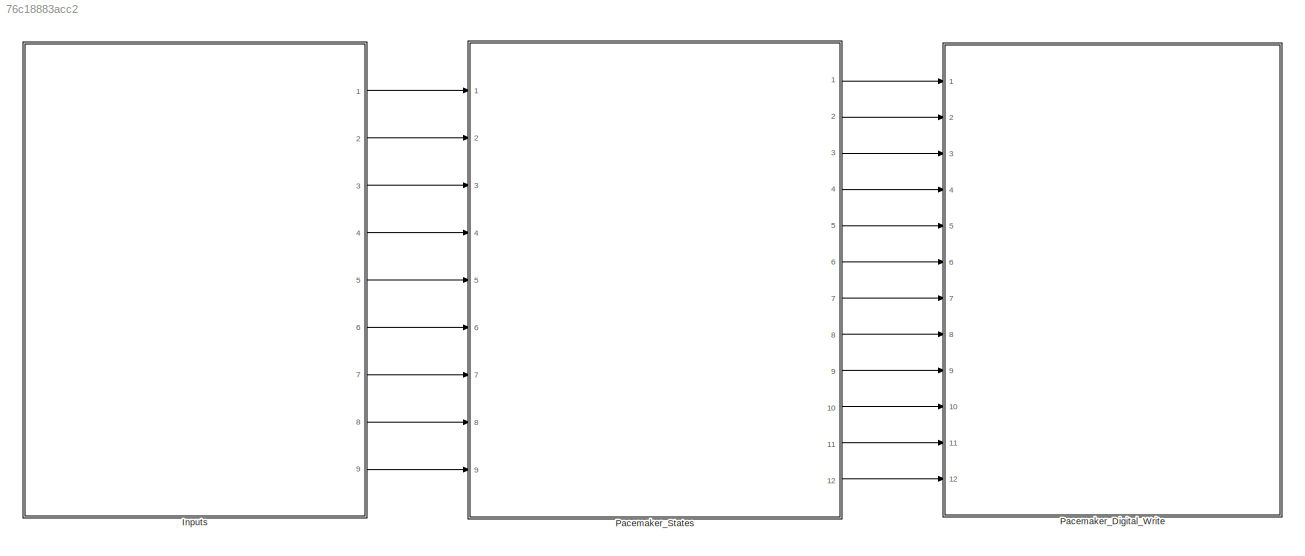
MODEL slx_76c18883acc2
KIND model
CONFIG AbsTol = auto
CONFIG EnableMultiTasking = on
CONFIG FixedStep = 1e-3
CONFIG MaxStep = auto
CONFIG MinStep = auto
CONFIG RelTol = 1e-3
CONFIG SampleTimeConstraint = Unconstrained
CONFIG Solver = FixedStepAuto
CONFIG SolverName = FixedStepAuto
CONFIG StartTime = 0.0
CONFIG StopTime = 10.0
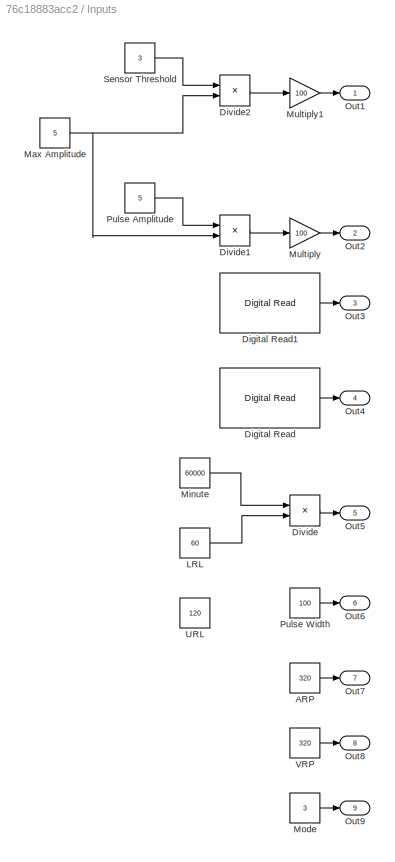
BLOCK [SubSystem] Inputs
  Ports = [0, 9]
  RequestExecContextInheritance = off
BLOCK [Constant] Inputs/ARP
  Value = 320
BLOCK [Reference] Inputs/Digital Read  REF=frdmk64flib/Digital Read
  Ports = [0, 1]
  SourceBlock = frdmk64flib/Digital Read
  SourceProductBaseCode = EC_FRDM_K64F
  SourceType = freedomk64f.DigitalRead
BLOCK [Reference] Inputs/Digital Read1  REF=frdmk64flib/Digital Read
  Ports = [0, 1]
  SourceBlock = frdmk64flib/Digital Read
  SourceProductBaseCode = EC_FRDM_K64F
  SourceType = freedomk64f.DigitalRead
BLOCK [Product] Inputs/Divide
  Inputs = */
  Ports = [2, 1]
BLOCK [Product] Inputs/Divide1
  Inputs = */
  Ports = [2, 1]
BLOCK [Product] Inputs/Divide2
  Inputs = */
  Ports = [2, 1]
BLOCK [Constant] Inputs/LRL
  Value = 60
BLOCK [Constant] Inputs/Max Amplitude
  Value = 5
BLOCK [Constant] Inputs/Minute
  Value = 60000
BLOCK [Constant] Inputs/Mode
  Value = 3
BLOCK [Gain] Inputs/Multiply
  Gain = 100
BLOCK [Gain] Inputs/Multiply1
  Gain = 100
BLOCK [Outport] Inputs/Out1
BLOCK [Outport] Inputs/Out2
  Port = 2
BLOCK [Outport] Inputs/Out3
  Port = 3
BLOCK [Outport] Inputs/Out4
  Port = 4
BLOCK [Outport] Inputs/Out5
  Port = 5
BLOCK [Outport] Inputs/Out6
  Port = 6
BLOCK [Outport] Inputs/Out7
  Port = 7
BLOCK [Outport] Inputs/Out8
  Port = 8
BLOCK [Outport] Inputs/Out9
  Port = 9
BLOCK [Constant] Inputs/Pulse Amplitude
  Value = 5
BLOCK [Constant] Inputs/Pulse Width
  Value = 100
BLOCK [Constant] Inputs/Sensor Threshold
  Value = 3
BLOCK [Constant] Inputs/URL
  Value = 120
BLOCK [Constant] Inputs/VRP
  Value = 320
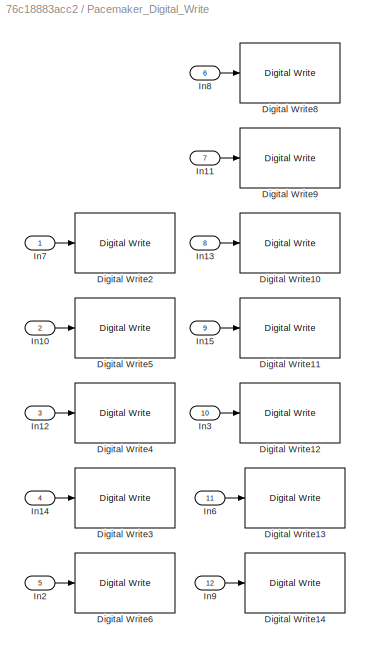
BLOCK [SubSystem] Pacemaker_Digital_Write
  Ports = [12]
  RequestExecContextInheritance = off
BLOCK [Reference] Pacemaker_Digital_Write/Digital Write10  REF=frdmk64flib/Digital Write
  Ports = [1]
  SourceBlock = frdmk64flib/Digital Write
  SourceProductBaseCode = EC_FRDM_K64F
  SourceType = freedomk64f.DigitalWrite
BLOCK [Reference] Pacemaker_Digital_Write/Digital Write11  REF=frdmk64flib/Digital Write
  Ports = [1]
  SourceBlock = frdmk64flib/Digital Write
  SourceProductBaseCode = EC_FRDM_K64F
  SourceType = freedomk64f.DigitalWrite
BLOCK [Reference] Pacemaker_Digital_Write/Digital Write12  REF=frdmk64flib/Digital Write
  Ports = [1]
  SourceBlock = frdmk64flib/Digital Write
  SourceProductBaseCode = EC_FRDM_K64F
  SourceType = freedomk64f.DigitalWrite
BLOCK [Reference] Pacemaker_Digital_Write/Digital Write13  REF=frdmk64flib/Digital Write
  Ports = [1]
  SourceBlock = frdmk64flib/Digital Write
  SourceProductBaseCode = EC_FRDM_K64F
  SourceType = freedomk64f.DigitalWrite
BLOCK [Reference] Pacemaker_Digital_Write/Digital Write14  REF=frdmk64flib/Digital Write
  Ports = [1]
  SourceBlock = frdmk64flib/Digital Write
  SourceProductBaseCode = EC_FRDM_K64F
  SourceType = freedomk64f.DigitalWrite
BLOCK [Reference] Pacemaker_Digital_Write/Digital Write2  REF=frdmk64flib/Digital Write
  Ports = [1]
  SourceBlock = frdmk64flib/Digital Write
  SourceProductBaseCode = EC_FRDM_K64F
  SourceType = freedomk64f.DigitalWrite
BLOCK [Reference] Pacemaker_Digital_Write/Digital Write3  REF=frdmk64flib/Digital Write
  Ports = [1]
  SourceBlock = frdmk64flib/Digital Write
  SourceProductBaseCode = EC_FRDM_K64F
  SourceType = freedomk64f.DigitalWrite
BLOCK [Reference] Pacemaker_Digital_Write/Digital Write4  REF=frdmk64flib/Digital Write
  Ports = [1]
  SourceBlock = frdmk64flib/Digital Write
  SourceProductBaseCode = EC_FRDM_K64F
  SourceType = freedomk64f.DigitalWrite
BLOCK [Reference] Pacemaker_Digital_Write/Digital Write5  REF=frdmk64flib/Digital Write
  Ports = [1]
  SourceBlock = frdmk64flib/Digital Write
  SourceProductBaseCode = EC_FRDM_K64F
  SourceType = freedomk64f.DigitalWrite
BLOCK [Reference] Pacemaker_Digital_Write/Digital Write6  REF=frdmk64flib/Digital Write
  Ports = [1]
  SourceBlock = frdmk64flib/Digital Write
  SourceProductBaseCode = EC_FRDM_K64F
  SourceType = freedomk64f.DigitalWrite
BLOCK [Reference] Pacemaker_Digital_Write/Digital Write8  REF=frdmk64flib/Digital Write
  Ports = [1]
  SourceBlock = frdmk64flib/Digital Write
  SourceProductBaseCode = EC_FRDM_K64F
  SourceType = freedomk64f.DigitalWrite
BLOCK [Reference] Pacemaker_Digital_Write/Digital Write9  REF=frdmk64flib/Digital Write
  Ports = [1]
  SourceBlock = frdmk64flib/Digital Write
  SourceProductBaseCode = EC_FRDM_K64F
  SourceType = freedomk64f.DigitalWrite
BLOCK [Inport] Pacemaker_Digital_Write/In10
  Port = 2
BLOCK [Inport] Pacemaker_Digital_Write/In11
  Port = 7
BLOCK [Inport] Pacemaker_Digital_Write/In12
  Port = 3
BLOCK [Inport] Pacemaker_Digital_Write/In13
  Port = 8
BLOCK [Inport] Pacemaker_Digital_Write/In14
  Port = 4
BLOCK [Inport] Pacemaker_Digital_Write/In15
  Port = 9
BLOCK [Inport] Pacemaker_Digital_Write/In2
  Port = 5
BLOCK [Inport] Pacemaker_Digital_Write/In3
  Port = 10
BLOCK [Inport] Pacemaker_Digital_Write/In6
  Port = 11
BLOCK [Inport] Pacemaker_Digital_Write/In7
BLOCK [Inport] Pacemaker_Digital_Write/In8
  Port = 6
BLOCK [Inport] Pacemaker_Digital_Write/In9
  Port = 12
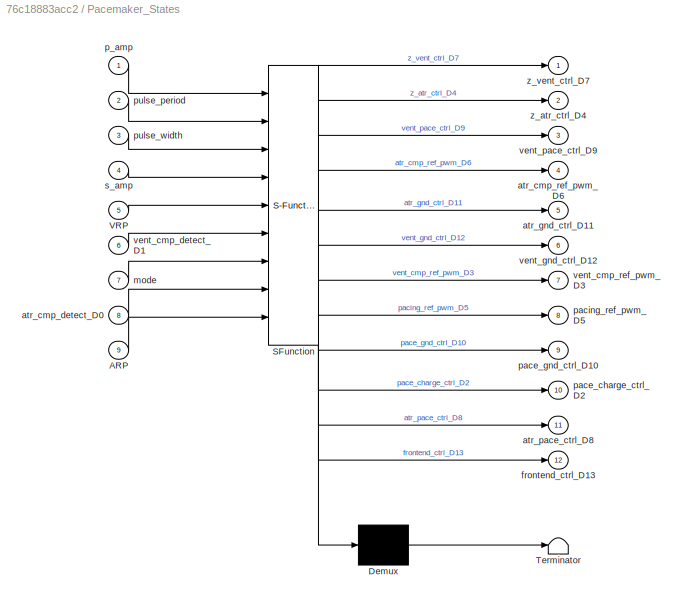
BLOCK [SubSystem] Pacemaker_States
  ErrorFcn = Stateflow.Translate.translate
  PermitHierarchicalResolution = ExplicitOnly
  PortSchema = {"entries":[{"content":{"sides":[{"content":{"connectorIds":["In4","In1","In8","In6","In2","In3","In9","In5","In7"]},"type":"ConnectorPlacement.EquallySpacedRectSide","uuid":"20680cc3-5670-44aa-8281-63eeb652eb93"},{"content":{"connectorIds":["Out10","Out7","Out2","Out8","Out4","Out1","Out11","Out3","Out9","Out5","Out6","Out12"],"side":"RIGHT"},"type":"ConnectorPlacement.EquallySpacedRectSide","uui...<+370ch>
  Ports = [9, 12]
  RequestExecContextInheritance = off
  SFBlockType = Chart
  TreatAsAtomicUnit = on
BLOCK [Demux] Pacemaker_States/ Demux 
  Outputs = 1
  Ports = [1, 1]
BLOCK [S-Function] Pacemaker_States/ SFunction 
  EnableBusSupport = on
  FunctionName = sf_sfun
  PortCounts = [9 13]
  Ports = [9, 13]
  SFcnIsStateOwnerBlock = off
  SFunctionDeploymentMode = off
  Tag = Stateflow S-Function 3
BLOCK [Terminator] Pacemaker_States/ Terminator 
BLOCK [Inport] Pacemaker_States/ARP
  Port = 9
BLOCK [Inport] Pacemaker_States/VRP
  Port = 5
BLOCK [Inport] Pacemaker_States/atr_cmp_detect_D0
  Port = 8
BLOCK [Outport] Pacemaker_States/atr_cmp_ref_pwm_D6
  Port = 4
BLOCK [Outport] Pacemaker_States/atr_gnd_ctrl_D11
  Port = 5
BLOCK [Outport] Pacemaker_States/atr_pace_ctrl_D8
  Port = 11
BLOCK [Outport] Pacemaker_States/frontend_ctrl_D13
  Port = 12
BLOCK [Inport] Pacemaker_States/mode
  Port = 7
BLOCK [Inport] Pacemaker_States/p_amp
BLOCK [Outport] Pacemaker_States/pace_charge_ctrl_D2
  Port = 10
BLOCK [Outport] Pacemaker_States/pace_gnd_ctrl_D10
  Port = 9
BLOCK [Outport] Pacemaker_States/pacing_ref_pwm_D5
  Port = 8
BLOCK [Inport] Pacemaker_States/pulse_period
  Port = 2
BLOCK [Inport] Pacemaker_States/pulse_width
  Port = 3
BLOCK [Inport] Pacemaker_States/s_amp
  Port = 4
BLOCK [Inport] Pacemaker_States/vent_cmp_detect_D1
  Port = 6
BLOCK [Outport] Pacemaker_States/vent_cmp_ref_pwm_D3
  Port = 7
BLOCK [Outport] Pacemaker_States/vent_gnd_ctrl_D12
  Port = 6
BLOCK [Outport] Pacemaker_States/vent_pace_ctrl_D9
  Port = 3
BLOCK [Outport] Pacemaker_States/z_atr_ctrl_D4
  Port = 2
BLOCK [Outport] Pacemaker_States/z_vent_ctrl_D7
LINE Inputs/ARP:1 -> Inputs/Out7:1
LINE Inputs/Digital Read1:1 -> Inputs/Out3:1
LINE Inputs/Digital Read:1 -> Inputs/Out4:1
LINE Inputs/Divide1:1 -> Inputs/Multiply:1
LINE Inputs/Divide2:1 -> Inputs/Multiply1:1
LINE Inputs/Divide:1 -> Inputs/Out5:1
LINE Inputs/LRL:1 -> Inputs/Divide:2
NET Inputs/Max Amplitude:1 -> Inputs/Divide1:2, Inputs/Divide2:2
LINE Inputs/Minute:1 -> Inputs/Divide:1
LINE Inputs/Mode:1 -> Inputs/Out9:1
LINE Inputs/Multiply1:1 -> Inputs/Out1:1
LINE Inputs/Multiply:1 -> Inputs/Out2:1
LINE Inputs/Pulse Amplitude:1 -> Inputs/Divide1:1
LINE Inputs/Pulse Width:1 -> Inputs/Out6:1
LINE Inputs/Sensor Threshold:1 -> Inputs/Divide2:1
LINE Inputs/VRP:1 -> Inputs/Out8:1
LINE Inputs:1 -> Pacemaker_States:4
LINE Inputs:2 -> Pacemaker_States:1
LINE Inputs:3 -> Pacemaker_States:8
LINE Inputs:4 -> Pacemaker_States:6
LINE Inputs:5 -> Pacemaker_States:2
LINE Inputs:6 -> Pacemaker_States:3
LINE Inputs:7 -> Pacemaker_States:9
LINE Inputs:8 -> Pacemaker_States:5
LINE Inputs:9 -> Pacemaker_States:7
LINE Pacemaker_Digital_Write/In10:1 -> Pacemaker_Digital_Write/Digital Write5:1
LINE Pacemaker_Digital_Write/In11:1 -> Pacemaker_Digital_Write/Digital Write9:1
LINE Pacemaker_Digital_Write/In12:1 -> Pacemaker_Digital_Write/Digital Write4:1
LINE Pacemaker_Digital_Write/In13:1 -> Pacemaker_Digital_Write/Digital Write10:1
LINE Pacemaker_Digital_Write/In14:1 -> Pacemaker_Digital_Write/Digital Write3:1
LINE Pacemaker_Digital_Write/In15:1 -> Pacemaker_Digital_Write/Digital Write11:1
LINE Pacemaker_Digital_Write/In2:1 -> Pacemaker_Digital_Write/Digital Write6:1
LINE Pacemaker_Digital_Write/In3:1 -> Pacemaker_Digital_Write/Digital Write12:1
LINE Pacemaker_Digital_Write/In6:1 -> Pacemaker_Digital_Write/Digital Write13:1
LINE Pacemaker_Digital_Write/In7:1 -> Pacemaker_Digital_Write/Digital Write2:1
LINE Pacemaker_Digital_Write/In8:1 -> Pacemaker_Digital_Write/Digital Write8:1
LINE Pacemaker_Digital_Write/In9:1 -> Pacemaker_Digital_Write/Digital Write14:1
LINE Pacemaker_States:1 -> Pacemaker_Digital_Write:6
LINE Pacemaker_States:10 -> Pacemaker_Digital_Write:1
LINE Pacemaker_States:11 -> Pacemaker_Digital_Write:7
LINE Pacemaker_States:12 -> Pacemaker_Digital_Write:12
LINE Pacemaker_States:2 -> Pacemaker_Digital_Write:3
LINE Pacemaker_States:3 -> Pacemaker_Digital_Write:8
LINE Pacemaker_States:4 -> Pacemaker_Digital_Write:5
LINE Pacemaker_States:5 -> Pacemaker_Digital_Write:10
LINE Pacemaker_States:6 -> Pacemaker_Digital_Write:11
LINE Pacemaker_States:7 -> Pacemaker_Digital_Write:2
LINE Pacemaker_States:8 -> Pacemaker_Digital_Write:4
LINE Pacemaker_States:9 -> Pacemaker_Digital_Write:9
note: NET lines group one-source signal fan-out (src -> all destinations, sorted); 1:1 wires keep LINE
CHART Pacemaker_States states=13 transitions=25
  STATE_LABEL 'VOO_State\n'
  STATE_LABEL 'Charging\n\nentry:\npacing_ref_pwm_D5 = p_amp;\npace_charge_ctrl_D2 = 1;\nvent_pace_ctrl_D9 = 0;\nvent_gnd_ctrl_D12 = 1;\npace_gnd_ctrl_D10 = 0;\nz_vent_ctrl_D7 = 0;\n'
  STATE_LABEL 'Pacing\n\nentry:\npace_charge_ctrl_D2 = 0;\nvent_pace_ctrl_D9 = 1;\nvent_gnd_ctrl_D12 = 0;\npace_gnd_ctrl_D10 = 1;\n'
  STATE_LABEL '[after(pulse_period - pulse_width,msec)]'
  STATE_LABEL '[after(pulse_width,msec)]'
  STATE_LABEL 'Charging\n\nentry:\npacing_ref_pwm_D5 = p_amp;\npace_charge_ctrl_D2 = 1;\nvent_pace_ctrl_D9 = 0;\nvent_gnd_ctrl_D12 = 1;\npace_gnd_ctrl_D10 = 0;\nz_vent_ctrl_D7 = 0;\n'
  STATE_LABEL 'Pacing\n\nentry:\npace_charge_ctrl_D2 = 0;\nvent_pace_ctrl_D9 = 1;\nvent_gnd_ctrl_D12 = 0;\npace_gnd_ctrl_D10 = 1;\n'
  STATE_LABEL 'AAI_State'
  STATE_LABEL 'AAI_Charging_Sensing \n\nentry:\nfrontend_ctrl_D13= 1;\npacing_ref_pwm_D5= p_amp;\natr_cmp_ref_pwm_D6= s_amp;\npace_charge_ctrl_D2 = 1;\natr_pace_ctrl_D8 = 0;\natr_gnd_ctrl_D11= 1;\npace_gnd_ctrl_D10= 1;\nz_atr_ctrl_D4= 0;\n'
  STATE_LABEL 'AAI_Pacing\n\nentry:\nfrontend_ctrl_D13= 0;\npace_charge_ctrl_D2 = 0;\npace_gnd_ctrl_D10 = 1;\natr_pace_ctrl_D8 = 1;\natr_gnd_ctrl_D11= 0;\nz_atr_ctrl_D4= 0;\npacing_ref_pwm_D5= p_amp;\n'
  STATE_LABEL '[atr_cmp_detect_D0 == 1]'
  STATE_LABEL '[after(ARP-pulse_width,msec)]'
  STATE_LABEL 'after(pulse_period- ARP,msec)'
  STATE_LABEL '[after(pulse_width,msec)]'
  STATE_LABEL 'AAI_Charging_Sensing \n\nentry:\nfrontend_ctrl_D13= 1;\npacing_ref_pwm_D5= p_amp;\natr_cmp_ref_pwm_D6= s_amp;\npace_charge_ctrl_D2 = 1;\natr_pace_ctrl_D8 = 0;\natr_gnd_ctrl_D11= 1;\npace_gnd_ctrl_D10= 1;\nz_atr_ctrl_D4= 0;\n'
  STATE_LABEL 'AAI_Pacing\n\nentry:\nfrontend_ctrl_D13= 0;\npace_charge_ctrl_D2 = 0;\npace_gnd_ctrl_D10 = 1;\natr_pace_ctrl_D8 = 1;\natr_gnd_ctrl_D11= 0;\nz_atr_ctrl_D4= 0;\npacing_ref_pwm_D5= p_amp;\n'
  STATE_LABEL 'AOO_State'
  STATE_LABEL 'Charging\n\n% Initial state - charging the capacitor\nentry:\npacing_ref_pwm_D5= p_amp;\npace_charge_ctrl_D2 = 1;\natr_pace_ctrl_D8 = 0;\natr_gnd_ctrl_D11= 1;\npace_gnd_ctrl_D10= 0;\nz_atr_ctrl_D4= 0;\n'
  STATE_LABEL 'Pacing\n\nentry:\npace_charge_ctrl_D2 = 0;\natr_pace_ctrl_D8 = 1;\natr_gnd_ctrl_D11= 0;\npace_gnd_ctrl_D10 = 1;\n'
  STATE_LABEL '[after(pulse_period - pulse_width,msec)]'
  STATE_LABEL '[after(pulse_width,msec)]'
  STATE_LABEL 'Charging\n\n% Initial state - charging the capacitor\nentry:\npacing_ref_pwm_D5= p_amp;\npace_charge_ctrl_D2 = 1;\natr_pace_ctrl_D8 = 0;\natr_gnd_ctrl_D11= 1;\npace_gnd_ctrl_D10= 0;\nz_atr_ctrl_D4= 0;\n'
  STATE_LABEL 'Pacing\n\nentry:\npace_charge_ctrl_D2 = 0;\natr_pace_ctrl_D8 = 1;\natr_gnd_ctrl_D11= 0;\npace_gnd_ctrl_D10 = 1;\n'
  STATE_LABEL 'Start_State'
  STATE_LABEL 'VVI_State'
  STATE_LABEL 'Pacing\n\nentry:\nfrontend_ctrl_D13 = 0;\npace_charge_ctrl_D2 = 0;\nvent_pace_ctrl_D9 = 1;\nvent_gnd_ctrl_D12 = 0;\npace_gnd_ctrl_D10 = 1;\npacing_ref_pwm_D5 = p_amp;\n'
  STATE_LABEL 'Charge_and_Sense\n\nentry:\nfrontend_ctrl_D13 = 1;\npacing_ref_pwm_D5 = p_amp;\nvent_cmp_ref_pwm_D3 = s_amp;\npace_charge_ctrl_D2 = 1;\nvent_pace_ctrl_D9 = 0;\nvent_gnd_ctrl_D12 = 1;\npace_gnd_ctrl_D10 = 1;\nz_vent_ctrl_D7 = 0;\n'
  STATE_LABEL '[vent_cmp_detect_D1 == 1]'
  STATE_LABEL '[after(VRP-pulse_width,msec)]'
  STATE_LABEL 'after(pulse_period- VRP,msec)'
  STATE_LABEL '[after(pulse_width,msec)]'
  STATE_LABEL 'Pacing\n\nentry:\nfrontend_ctrl_D13 = 0;\npace_charge_ctrl_D2 = 0;\nvent_pace_ctrl_D9 = 1;\nvent_gnd_ctrl_D12 = 0;\npace_gnd_ctrl_D10 = 1;\npacing_ref_pwm_D5 = p_amp;\n'
  STATE_LABEL 'Charge_and_Sense\n\nentry:\nfrontend_ctrl_D13 = 1;\npacing_ref_pwm_D5 = p_amp;\nvent_cmp_ref_pwm_D3 = s_amp;\npace_charge_ctrl_D2 = 1;\nvent_pace_ctrl_D9 = 0;\nvent_gnd_ctrl_D12 = 1;\npace_gnd_ctrl_D10 = 1;\nz_vent_ctrl_D7 = 0;\n'
CHART  states=0 transitions=0
